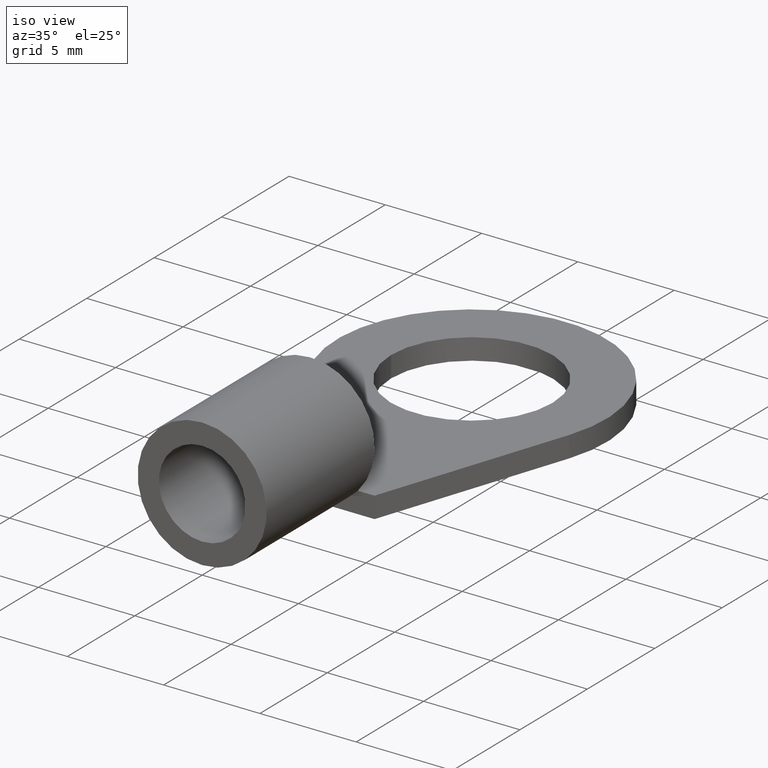
[diagram: clean part render]
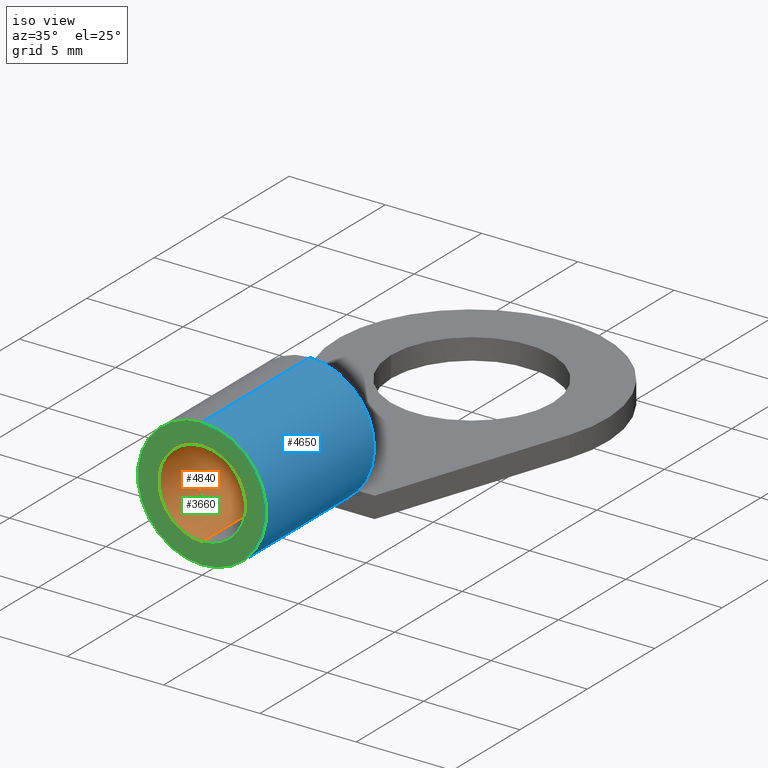
[diagram: same view with three faces highlighted in distinct colors, each labeled with its STEP entity id]
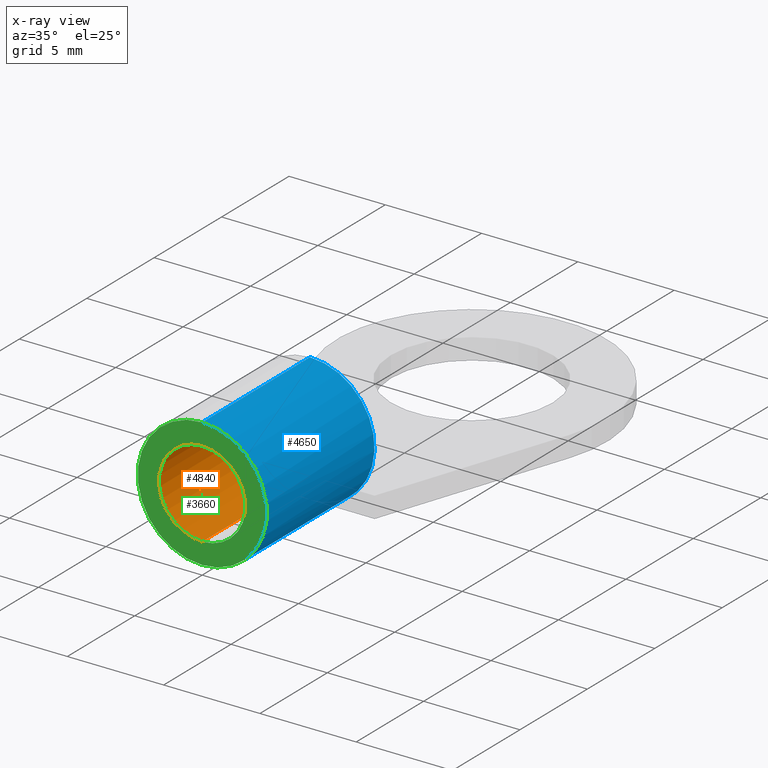
[diagram: x-ray of the same camera — body ghosted, the three highlighted faces saturated]
A machine part, iso view with three faces highlighted in distinct colors.
The next image is the same camera in x-ray (body ghosted, the three faces saturated) — at least one of them is partly hidden behind the body in this view.
Their STEP definitions:

[orange] entity #4840 — the highlighted cylindrical surface (partial cylindrical patch) has radius 2.25 mm, axis along (0, -1, 0).
#1340=CARTESIAN_POINT('',(-4.30467364440851,211.762570691579,
126.711935323185));
#1350=VERTEX_POINT('',#1340);
#3510=CARTESIAN_POINT('',(-12.2139094745023,213.328090275945,
124.698074102811));
#3520=DIRECTION('',(-0.98865447709775,0.148035752772573,
0.0254507527517699));
#3530=DIRECTION('',(-5.91634389376223E-9,0.169437138749457,
-0.985540996616781));
#3540=AXIS2_PLACEMENT_3D('',#3510,#3520,#3530);
#3550=CIRCLE('',#3540,2.25);
#3560=CARTESIAN_POINT('',(-12.2139094878141,213.709323838132,
122.480606860424));
#3570=VERTEX_POINT('',#3560);
#3580=CARTESIAN_POINT('',(-12.2139094611905,212.946856713759,
126.915541345199));
#3590=VERTEX_POINT('',#3580);
#3600=EDGE_CURVE('',#3570,#3590,#3550,.T.);
#3790=CARTESIAN_POINT('',(-4.30467365772029,212.143804253765,
124.494468080797));
#3800=DIRECTION('',(-0.98865447709775,0.148035752772573,
0.0254507527517699));
#3810=DIRECTION('',(-5.91634389376223E-9,0.169437138749457,
-0.985540996616781));
#3820=AXIS2_PLACEMENT_3D('',#3790,#3800,#3810);
#3830=CIRCLE('',#3820,2.25);
#3840=CARTESIAN_POINT('',(-4.30467367103207,212.525037815951,
122.27700083841));
#3850=VERTEX_POINT('',#3840);
#3930=EDGE_CURVE('',#3850,#1350,#3830,.T.);
#4100=CARTESIAN_POINT('',(-4.30467364440852,211.762570691579,
126.711935323185));
#4110=DIRECTION('',(-0.98865447709775,0.148035752772573,
0.0254507527517699));
#4120=VECTOR('',#4110,1.);
#4130=LINE('',#4100,#4120);
#4140=EDGE_CURVE('',#1350,#3590,#4130,.T.);
#4170=CARTESIAN_POINT('',(-4.30467367103207,212.525037815951,
122.27700083841));
#4180=DIRECTION('',(-0.98865447709775,0.148035752772573,
0.0254507527517699));
#4190=VECTOR('',#4180,1.);
#4200=LINE('',#4170,#4190);
#4210=EDGE_CURVE('',#3850,#3570,#4200,.T.);
#4730=CARTESIAN_POINT('',(-4.30467365772029,212.143804253765,
124.494468080797));
#4740=DIRECTION('',(-0.98865447709775,0.148035752772573,
0.0254507527517699));
#4750=DIRECTION('',(-5.91634389376223E-9,0.169437138749457,
-0.985540996616781));
#4760=AXIS2_PLACEMENT_3D('',#4730,#4740,#4750);
#4770=CYLINDRICAL_SURFACE('',#4760,2.25);
#4780=ORIENTED_EDGE('',*,*,#4140,.F.);
#4790=ORIENTED_EDGE('',*,*,#3600,.T.);
#4800=ORIENTED_EDGE('',*,*,#4210,.T.);
#4810=ORIENTED_EDGE('',*,*,#3930,.F.);
#4820=EDGE_LOOP('',(#4810,#4800,#4790,#4780));
#4830=FACE_OUTER_BOUND('',#4820,.T.);
#4840=ADVANCED_FACE('',(#4830),#4770,.F.);

[blue] entity #4650 — the highlighted cylindrical surface (partial cylindrical patch) has radius 3.35 mm, axis along (0, -1, 0).
#690=CARTESIAN_POINT('',(-4.30467363790053,211.576189838954,
127.796030419464));
#700=VERTEX_POINT('',#690);
#1260=CARTESIAN_POINT('',(-3.93186817036907,214.180867420061,
127.127696085571));
#1270=VERTEX_POINT('',#1260);
#2340=CARTESIAN_POINT('',(-4.30467365772028,212.143804253765,
124.494468080797));
#2350=DIRECTION('',(-0.98865447709775,0.148035752772573,
0.0254507527517699));
#2360=DIRECTION('',(-5.91634388347198E-9,0.169437138749457,
-0.985540996616781));
#2370=AXIS2_PLACEMENT_3D('',#2340,#2350,#2360);
#2380=CIRCLE('',#2370,3.35);
#2810=EDGE_CURVE('',#700,#1270,#2380,.T.);
#2980=CARTESIAN_POINT('',(-4.30467363790054,211.576189838954,
127.796030419464));
#2990=DIRECTION('',(-0.98865447709775,0.148035752772573,
0.0254507527517699));
#3000=VECTOR('',#2990,1.);
#3010=LINE('',#2980,#3000);
#3020=CARTESIAN_POINT('',(-12.2139094546825,212.760475861135,
127.999636441478));
#3030=VERTEX_POINT('',#3020);
#3040=EDGE_CURVE('',#700,#3030,#3010,.T.);
#3070=CARTESIAN_POINT('',(-4.30467365772029,212.143804253765,
124.494468080797));
#3080=DIRECTION('',(-0.98865447709775,0.148035752772573,
0.0254507527517699));
#3090=DIRECTION('',(-5.91634389376223E-9,0.169437138749457,
-0.985540996616781));
#3100=AXIS2_PLACEMENT_3D('',#3070,#3080,#3090);
#3110=CIRCLE('',#3100,3.35);
#3120=CARTESIAN_POINT('',(-4.30467367754004,212.711418668576,
121.192905742131));
#3130=VERTEX_POINT('',#3120);
#3160=CARTESIAN_POINT('',(-4.30467367754004,212.711418668576,
121.192905742131));
#3170=DIRECTION('',(-0.98865447709775,0.148035752772573,
0.0254507527517699));
#3180=VECTOR('',#3170,1.);
#3190=LINE('',#3160,#3180);
#3200=CARTESIAN_POINT('',(-12.213909494322,213.895704690756,
121.396511764145));
#3210=VERTEX_POINT('',#3200);
#3220=EDGE_CURVE('',#3130,#3210,#3190,.T.);
#3240=CARTESIAN_POINT('',(-12.2139094745023,213.328090275945,
124.698074102811));
#3250=DIRECTION('',(-0.98865447709775,0.148035752772573,
0.0254507527517699));
#3260=DIRECTION('',(-5.91634389376223E-9,0.169437138749457,
-0.985540996616781));
#3270=AXIS2_PLACEMENT_3D('',#3240,#3250,#3260);
#3280=CIRCLE('',#3270,3.35);
#3460=EDGE_CURVE('',#3030,#3210,#3280,.T.);
#3890=EDGE_CURVE('',#1270,#3130,#3110,.T.);
#4530=CARTESIAN_POINT('',(-4.30467365772029,212.143804253765,
124.494468080797));
#4540=DIRECTION('',(-0.98865447709775,0.148035752772573,
0.0254507527517699));
#4550=DIRECTION('',(-5.91634389376223E-9,0.169437138749457,
-0.985540996616781));
#4560=AXIS2_PLACEMENT_3D('',#4530,#4540,#4550);
#4570=CYLINDRICAL_SURFACE('',#4560,3.35);
#4580=ORIENTED_EDGE('',*,*,#3040,.F.);
#4590=ORIENTED_EDGE('',*,*,#3460,.F.);
#4600=ORIENTED_EDGE('',*,*,#3220,.T.);
#4610=ORIENTED_EDGE('',*,*,#3890,.T.);
#4620=ORIENTED_EDGE('',*,*,#2810,.T.);
#4630=EDGE_LOOP('',(#4620,#4610,#4600,#4590,#4580));
#4640=FACE_OUTER_BOUND('',#4630,.T.);
#4650=ADVANCED_FACE('',(#4640),#4570,.T.);

[green] entity #3660 — the highlighted planar face has unit normal (0, -1, 0).
#3020=CARTESIAN_POINT('',(-12.2139094546825,212.760475861135,
127.999636441478));
#3030=VERTEX_POINT('',#3020);
#3200=CARTESIAN_POINT('',(-12.213909494322,213.895704690756,
121.396511764145));
#3210=VERTEX_POINT('',#3200);
#3240=CARTESIAN_POINT('',(-12.2139094745023,213.328090275945,
124.698074102811));
#3250=DIRECTION('',(-0.98865447709775,0.148035752772573,
0.0254507527517699));
#3260=DIRECTION('',(-5.91634389376223E-9,0.169437138749457,
-0.985540996616781));
#3270=AXIS2_PLACEMENT_3D('',#3240,#3250,#3260);
#3280=CIRCLE('',#3270,3.35);
#3290=EDGE_CURVE('',#3210,#3030,#3280,.T.);
#3410=CARTESIAN_POINT('',(-12.2139094579365,212.853666287447,
127.457588893338));
#3420=DIRECTION('',(-0.98865447709775,0.148035752772573,
0.0254507527517699));
#3430=DIRECTION('',(-5.91634389376223E-9,0.169437138749457,
-0.985540996616781));
#3440=AXIS2_PLACEMENT_3D('',#3410,#3420,#3430);
#3450=PLANE('',#3440);
#3460=EDGE_CURVE('',#3030,#3210,#3280,.T.);
#3470=ORIENTED_EDGE('',*,*,#3460,.T.);
#3480=ORIENTED_EDGE('',*,*,#3290,.T.);
#3490=EDGE_LOOP('',(#3480,#3470));
#3500=FACE_OUTER_BOUND('',#3490,.T.);
#3510=CARTESIAN_POINT('',(-12.2139094745023,213.328090275945,
124.698074102811));
#3520=DIRECTION('',(-0.98865447709775,0.148035752772573,
0.0254507527517699));
#3530=DIRECTION('',(-5.91634389376223E-9,0.169437138749457,
-0.985540996616781));
#3540=AXIS2_PLACEMENT_3D('',#3510,#3520,#3530);
#3550=CIRCLE('',#3540,2.25);
#3560=CARTESIAN_POINT('',(-12.2139094878141,213.709323838132,
122.480606860424));
#3570=VERTEX_POINT('',#3560);
#3580=CARTESIAN_POINT('',(-12.2139094611905,212.946856713759,
126.915541345199));
#3590=VERTEX_POINT('',#3580);
#3600=EDGE_CURVE('',#3570,#3590,#3550,.T.);
#3610=ORIENTED_EDGE('',*,*,#3600,.F.);
#3620=EDGE_CURVE('',#3590,#3570,#3550,.T.);
#3630=ORIENTED_EDGE('',*,*,#3620,.F.);
#3640=EDGE_LOOP('',(#3630,#3610));
#3650=FACE_BOUND('',#3640,.T.);
#3660=ADVANCED_FACE('',(#3500,#3650),#3450,.T.);